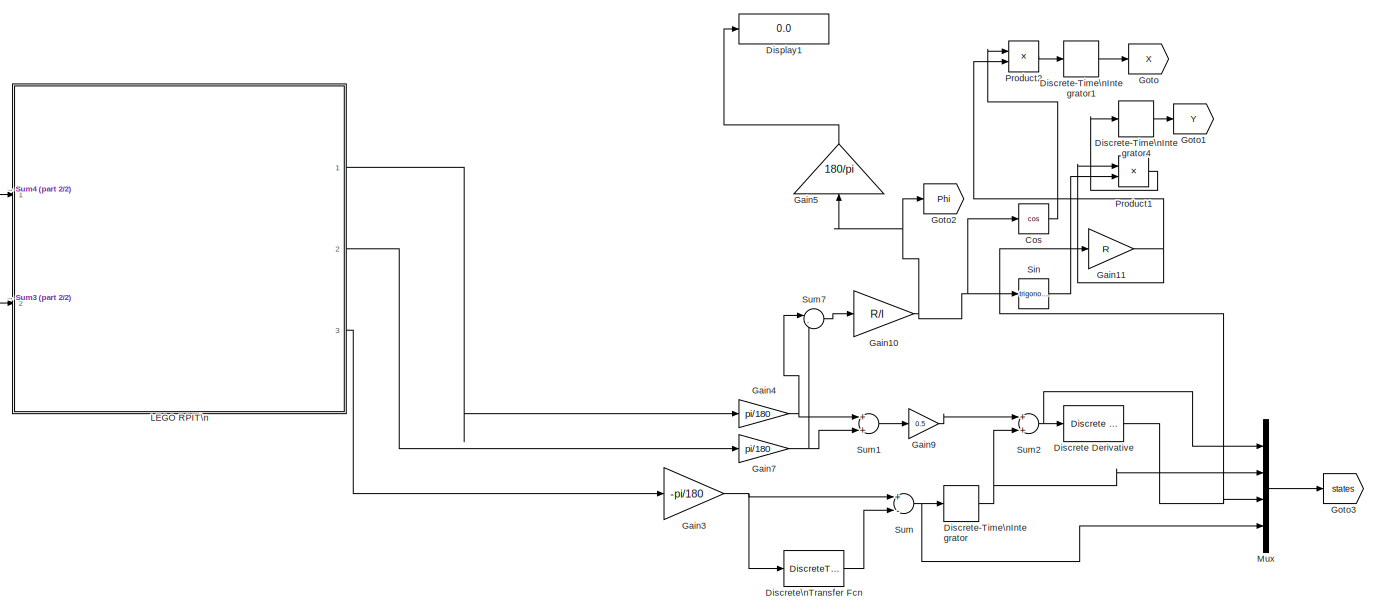
[diagram: root canvas - part 1/2, right side, full height]
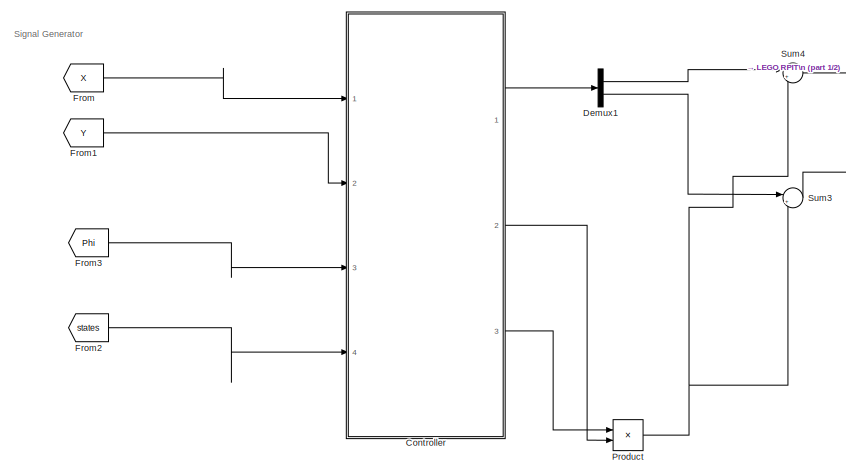
[diagram: root canvas - part 2/2, left side, full height]
MODEL EV3_test
KIND model
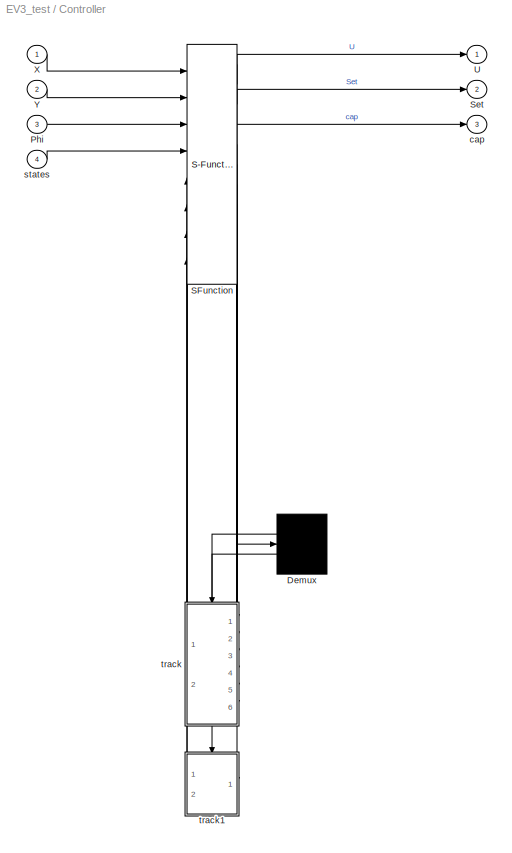
BLOCK [SubSystem] Controller
  ErrorFcn = Stateflow.Translate.translate
  PermitHierarchicalResolution = ExplicitOnly
  Ports = [4, 3]
  RequestExecContextInheritance = off
  SFBlockType = Chart
  SID = 88
  TreatAsAtomicUnit = on
  Variant = off
BLOCK [Demux] Controller/ Demux 
  Outputs = 2
  Ports = [1, 2]
  SID = 88::189
BLOCK [S-Function] Controller/ SFunction 
  EnableBusSupport = on
  FunctionName = sf_sfun
  Parameters = waypoints
  PortCounts = [8 11]
  Ports = [8, 11]
  SFcnIsStateOwnerBlock = off
  SFunctionDeploymentMode = off
  SID = 88::188
  Tag = Stateflow S-Function EV3_test 3
BLOCK [Inport] Controller/Phi
  IconDisplay = Port number
  Port = 3
  SID = 88::183
BLOCK [Outport] Controller/Set
  IconDisplay = Port number
  Port = 2
  SID = 88::191
BLOCK [Outport] Controller/U
  IconDisplay = Port number
  SID = 88::163
BLOCK [Inport] Controller/X
  IconDisplay = Port number
  SID = 88::159
BLOCK [Inport] Controller/Y
  IconDisplay = Port number
  Port = 2
  SID = 88::160
BLOCK [Outport] Controller/cap
  IconDisplay = Port number
  Port = 3
  SID = 88::293
BLOCK [Inport] Controller/states
  IconDisplay = Port number
  Port = 4
  SID = 88::161
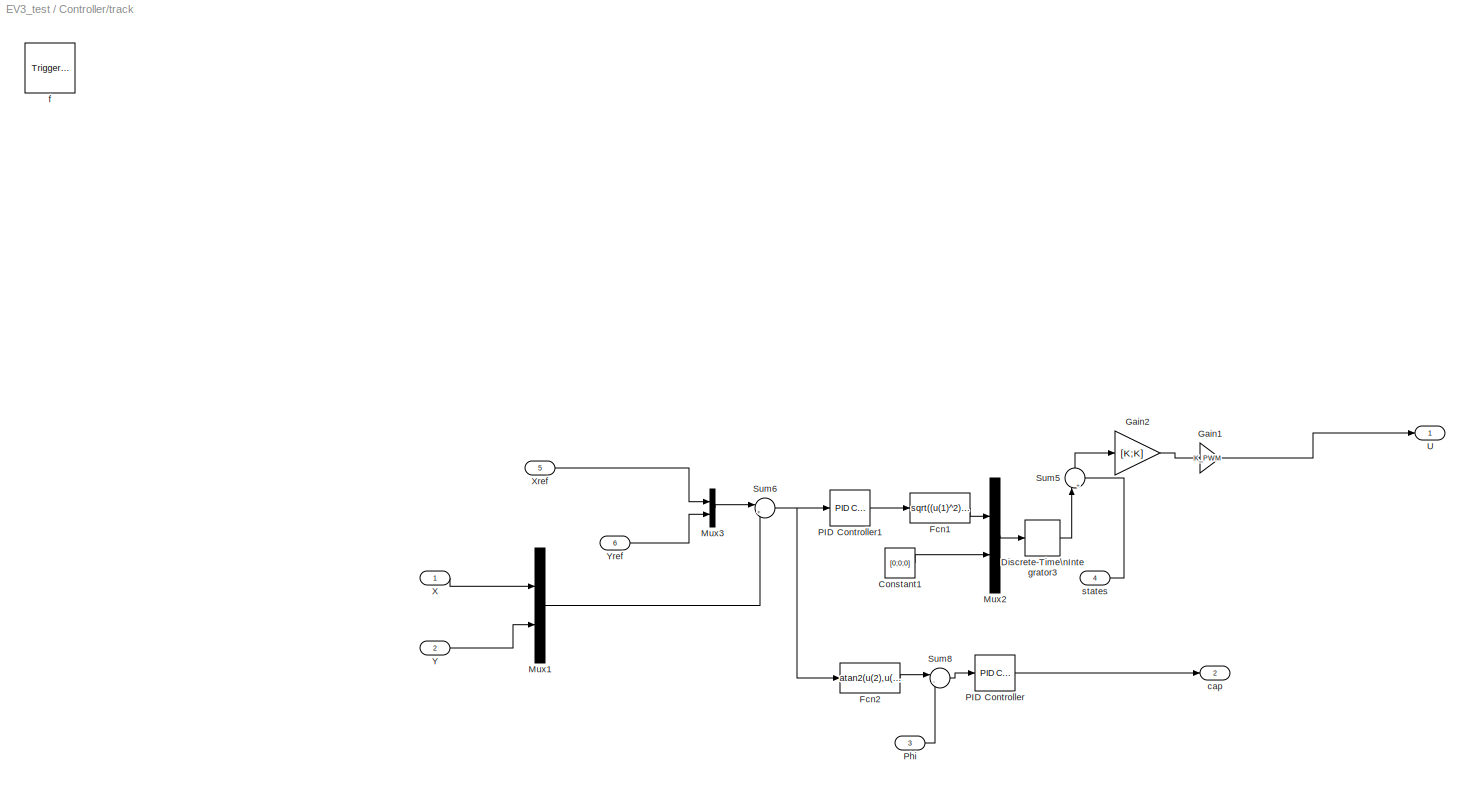
BLOCK [SubSystem] Controller/track
  Ports = [6, 2, 0, 1]
  PreDeleteFcn = Stateflow.SLINSF.SimulinkMan.removePreDeleteFcn
  RequestExecContextInheritance = off
  SID = 88::85
  UndoDeleteFcn = Stateflow.SLINSF.SimulinkMan.restorePreDeleteFcn
  Variant = off
BLOCK [Constant] Controller/track/Constant1
  SID = 88::91
  Value = [0;0;0]
BLOCK [DiscreteIntegrator] Controller/track/Discrete-Time\nIntegrator3
  ICPrevOutput = DiscIntNeverNeededParam
  ICPrevScaledInput = DiscIntNeverNeededParam
  Ports = [1, 1]
  SID = 88::92
  SampleTime = -1
BLOCK [Fcn] Controller/track/Fcn1
  Expr = sqrt((u(1)^2)+(u(2)^2))
  SID = 88::93
BLOCK [Fcn] Controller/track/Fcn2
  Expr = atan2(u(2),u(1))
  SID = 88::94
BLOCK [Gain] Controller/track/Gain1
  Gain = K_PWM
  OutDataTypeStr = Inherit: Inherit via internal rule
  ParamDataTypeStr = Inherit: Inherit via internal rule
  SID = 88::97
  SaturateOnIntegerOverflow = off
BLOCK [Gain] Controller/track/Gain2
  Gain = [K;K]
  Multiplication = Matrix(K*u)
  OutDataTypeStr = Inherit: Inherit via internal rule
  ParamDataTypeStr = Inherit: Inherit via internal rule
  SID = 88::98
  SaturateOnIntegerOverflow = off
BLOCK [Mux] Controller/track/Mux1
  DisplayOption = bar
  Inputs = 2
  Ports = [2, 1]
  SID = 88::99
BLOCK [Mux] Controller/track/Mux2
  DisplayOption = bar
  Inputs = 2
  Ports = [2, 1]
  SID = 88::100
BLOCK [Mux] Controller/track/Mux3
  DisplayOption = bar
  Inputs = 2
  Ports = [2, 1]
  SID = 88::101
BLOCK [Reference] Controller/track/PID Controller  REF=simulink/Continuous/PID Controller
  AntiWindupMode = none
  Controller = PID
  ControllerParametersSource = internal
  D = 0.8
  DGainOutDataTypeStr = Inherit: Inherit via internal rule
  DOutDataTypeStr = Inherit: Inherit via internal rule
  DOutMax = []
  DOutMin = []
  DParamDataTypeStr = Inherit: Inherit via internal rule
  DParamMax = []
  DParamMin = []
  DProdOutDataTypeStr = Inherit: Inherit via internal rule
  DifferentiatorICPrevScaledInput = 0
  DifferentiatorOutDataTypeStr = Inherit: Inherit via internal rule
  DifferentiatorOutMax = []
  DifferentiatorOutMin = []
  DivideOutDataTypeStr = Inherit: Inherit via internal rule
  DivideOutMax = []
  DivideOutMin = []
  ExternalReset = none
  FilterContinuousStateAttributes = ''
  FilterDiffDenAccumDataTypeStr = Inherit: Inherit via internal rule
  FilterDiffDenProductOutputDataTypeStr = Inherit: Inherit via internal rule
  FilterDiffNumAccumDataTypeStr = Inherit: Inherit via internal rule
  FilterDiffNumProductOutputDataTypeStr = Inherit: Inherit via internal rule
  FilterDiffOutCoefDataTypeStr = Inherit: Inherit via internal rule
  FilterDiffOutCoefMax = []
  FilterDiffOutCoefMin = []
  FilterMethod = Forward Euler
  FilterOutDataTypeStr = Inherit: Inherit via internal rule
  FilterOutMax = []
  FilterOutMin = []
  FilterRTWStateStorageClass = Auto
  FilterStateMustResolveToSignalObject = off
  Form = Parallel
  I = 0
  IGainOutDataTypeStr = Inherit: Inherit via internal rule
  IOutDataTypeStr = Inherit: Inherit via internal rule
  IOutMax = []
  IOutMin = []
  IParamDataTypeStr = Inherit: Inherit via internal rule
  IParamMax = []
  IParamMin = []
  IProdOutDataTypeStr = Inherit: Inherit via internal rule
  IgnoreLimit = off
  InitialConditionForFilter = 0
  InitialConditionForIntegrator = 0
  InitialConditionSetting = State (most efficient)
  InitialConditionSource = internal
  IntegratorContinuousStateAttributes = ''
  IntegratorMethod = Forward Euler
  IntegratorOutDataTypeStr = Inherit: Inherit via internal rule
  IntegratorOutMax = []
  IntegratorOutMin = []
  IntegratorRTWStateStorageClass = Auto
  IntegratorStateMustResolveToSignalObject = off
  Kb = 1
  KbOutDataTypeStr = Inherit: Inherit via internal rule
  KbOutMax = []
  KbOutMin = []
  KbParamDataTypeStr = Inherit: Inherit via internal rule
  KbParamMax = []
  KbParamMin = []
  Kt = 1
  KtOutDataTypeStr = Inherit: Inherit via internal rule
  KtOutMax = []
  KtOutMin = []
  KtParamDataTypeStr = Inherit: Inherit via internal rule
  KtParamMax = []
  KtParamMin = []
  LimitOutput = off
  LinearizeAsGain = on
  LockScale = off
  LowerSaturationLimit = -inf
  N = 100
  NGainOutDataTypeStr = Inherit: Inherit via internal rule
  NOutDataTypeStr = Inherit: Inherit via internal rule
  NOutMax = []
  NOutMin = []
  NParamDataTypeStr = Inherit: Inherit via internal rule
  NParamMax = []
  NParamMin = []
  NProdOutDataTypeStr = Inherit: Inherit via internal rule
  P = 4
  PGainOutDataTypeStr = Inherit: Inherit via internal rule
  POutDataTypeStr = Inherit: Inherit via internal rule
  POutMax = []
  POutMin = []
  PParamDataTypeStr = Inherit: Inherit via internal rule
  PParamMax = []
  PParamMin = []
  PProdOutDataTypeStr = Inherit: Inherit via internal rule
  Ports = [1, 1]
  ReciprocalOutDataTypeStr = Inherit: Inherit via internal rule
  ReciprocalOutMax = []
  ReciprocalOutMin = []
  RndMeth = Floor
  SID = 88::102
  SampleTime = -1
  SaturateOnIntegerOverflow = off
  SaturationOutDataTypeStr = Inherit: Same as input
  SaturationOutMax = []
  SaturationOutMin = []
  SourceBlock = simulink/Continuous/PID Controller
  SourceProductBaseCode = SL
  SourceProductName = Simulink
  SourceType = PID 1dof
  SumAccumDataTypeStr = Inherit: Inherit via internal rule
  SumDAccumDataTypeStr = Inherit: Inherit via internal rule
  SumDOutDataTypeStr = Inherit: Inherit via internal rule
  SumDOutMax = []
  SumDOutMin = []
  SumDenAccumDataTypeStr = Inherit: Inherit via internal rule
  SumDenOutDataTypeStr = Inherit: Inherit via internal rule
  SumDenOutMax = []
  SumDenOutMin = []
  SumI1AccumDataTypeStr = Inherit: Inherit via internal rule
  SumI1OutDataTypeStr = Inherit: Inherit via internal rule
  SumI1OutMax = []
  SumI1OutMin = []
  SumI2AccumDataTypeStr = Inherit: Inherit via internal rule
  SumI2OutDataTypeStr = Inherit: Inherit via internal rule
  SumI2OutMax = []
  SumI2OutMin = []
  SumI3AccumDataTypeStr = Inherit: Inherit via internal rule
  SumI3OutDataTypeStr = Inherit: Inherit via internal rule
  SumI3OutMax = []
  SumI3OutMin = []
  SumNumAccumDataTypeStr = Inherit: Inherit via internal rule
  SumNumOutDataTypeStr = Inherit: Inherit via internal rule
  SumNumOutMax = []
  SumNumOutMin = []
  SumOutDataTypeStr = Inherit: Inherit via internal rule
  SumOutMax = []
  SumOutMin = []
  TimeDomain = Discrete-time
  TrackingMode = off
  TunerSelectOption = Transfer Function Based (PID Tuner App)
  UpperSaturationLimit = inf
  UseFilter = on
  ZeroCross = on
BLOCK [Reference] Controller/track/PID Controller1  REF=simulink/Continuous/PID Controller
  AntiWindupMode = none
  Controller = PID
  ControllerParametersSource = internal
  D = 0.105
  DGainOutDataTypeStr = Inherit: Inherit via internal rule
  DOutDataTypeStr = Inherit: Inherit via internal rule
  DOutMax = []
  DOutMin = []
  DParamDataTypeStr = Inherit: Inherit via internal rule
  DParamMax = []
  DParamMin = []
  DProdOutDataTypeStr = Inherit: Inherit via internal rule
  DifferentiatorICPrevScaledInput = 0
  DifferentiatorOutDataTypeStr = Inherit: Inherit via internal rule
  DifferentiatorOutMax = []
  DifferentiatorOutMin = []
  DivideOutDataTypeStr = Inherit: Inherit via internal rule
  DivideOutMax = []
  DivideOutMin = []
  ExternalReset = none
  FilterContinuousStateAttributes = ''
  FilterDiffDenAccumDataTypeStr = Inherit: Inherit via internal rule
  FilterDiffDenProductOutputDataTypeStr = Inherit: Inherit via internal rule
  FilterDiffNumAccumDataTypeStr = Inherit: Inherit via internal rule
  FilterDiffNumProductOutputDataTypeStr = Inherit: Inherit via internal rule
  FilterDiffOutCoefDataTypeStr = Inherit: Inherit via internal rule
  FilterDiffOutCoefMax = []
  FilterDiffOutCoefMin = []
  FilterMethod = Forward Euler
  FilterOutDataTypeStr = Inherit: Inherit via internal rule
  FilterOutMax = []
  FilterOutMin = []
  FilterRTWStateStorageClass = Auto
  FilterStateMustResolveToSignalObject = off
  Form = Parallel
  I = 0.025
  IGainOutDataTypeStr = Inherit: Inherit via internal rule
  IOutDataTypeStr = Inherit: Inherit via internal rule
  IOutMax = []
  IOutMin = []
  IParamDataTypeStr = Inherit: Inherit via internal rule
  IParamMax = []
  IParamMin = []
  IProdOutDataTypeStr = Inherit: Inherit via internal rule
  IgnoreLimit = off
  InitialConditionForFilter = 0
  InitialConditionForIntegrator = 0
  InitialConditionSetting = State (most efficient)
  InitialConditionSource = internal
  IntegratorContinuousStateAttributes = ''
  IntegratorMethod = Forward Euler
  IntegratorOutDataTypeStr = Inherit: Inherit via internal rule
  IntegratorOutMax = []
  IntegratorOutMin = []
  IntegratorRTWStateStorageClass = Auto
  IntegratorStateMustResolveToSignalObject = off
  Kb = 1
  KbOutDataTypeStr = Inherit: Inherit via internal rule
  KbOutMax = []
  KbOutMin = []
  KbParamDataTypeStr = Inherit: Inherit via internal rule
  KbParamMax = []
  KbParamMin = []
  Kt = 1
  KtOutDataTypeStr = Inherit: Inherit via internal rule
  KtOutMax = []
  KtOutMin = []
  KtParamDataTypeStr = Inherit: Inherit via internal rule
  KtParamMax = []
  KtParamMin = []
  LimitOutput = off
  LinearizeAsGain = on
  LockScale = off
  LowerSaturationLimit = -inf
  N = 100
  NGainOutDataTypeStr = Inherit: Inherit via internal rule
  NOutDataTypeStr = Inherit: Inherit via internal rule
  NOutMax = []
  NOutMin = []
  NParamDataTypeStr = Inherit: Inherit via internal rule
  NParamMax = []
  NParamMin = []
  NProdOutDataTypeStr = Inherit: Inherit via internal rule
  P = 1
  PGainOutDataTypeStr = Inherit: Inherit via internal rule
  POutDataTypeStr = Inherit: Inherit via internal rule
  POutMax = []
  POutMin = []
  PParamDataTypeStr = Inherit: Inherit via internal rule
  PParamMax = []
  PParamMin = []
  PProdOutDataTypeStr = Inherit: Inherit via internal rule
  Ports = [1, 1]
  ReciprocalOutDataTypeStr = Inherit: Inherit via internal rule
  ReciprocalOutMax = []
  ReciprocalOutMin = []
  RndMeth = Floor
  SID = 88::103
  SampleTime = -1
  SaturateOnIntegerOverflow = off
  SaturationOutDataTypeStr = Inherit: Same as input
  SaturationOutMax = []
  SaturationOutMin = []
  SourceBlock = simulink/Continuous/PID Controller
  SourceProductBaseCode = SL
  SourceProductName = Simulink
  SourceType = PID 1dof
  SumAccumDataTypeStr = Inherit: Inherit via internal rule
  SumDAccumDataTypeStr = Inherit: Inherit via internal rule
  SumDOutDataTypeStr = Inherit: Inherit via internal rule
  SumDOutMax = []
  SumDOutMin = []
  SumDenAccumDataTypeStr = Inherit: Inherit via internal rule
  SumDenOutDataTypeStr = Inherit: Inherit via internal rule
  SumDenOutMax = []
  SumDenOutMin = []
  SumI1AccumDataTypeStr = Inherit: Inherit via internal rule
  SumI1OutDataTypeStr = Inherit: Inherit via internal rule
  SumI1OutMax = []
  SumI1OutMin = []
  SumI2AccumDataTypeStr = Inherit: Inherit via internal rule
  SumI2OutDataTypeStr = Inherit: Inherit via internal rule
  SumI2OutMax = []
  SumI2OutMin = []
  SumI3AccumDataTypeStr = Inherit: Inherit via internal rule
  SumI3OutDataTypeStr = Inherit: Inherit via internal rule
  SumI3OutMax = []
  SumI3OutMin = []
  SumNumAccumDataTypeStr = Inherit: Inherit via internal rule
  SumNumOutDataTypeStr = Inherit: Inherit via internal rule
  SumNumOutMax = []
  SumNumOutMin = []
  SumOutDataTypeStr = Inherit: Inherit via internal rule
  SumOutMax = []
  SumOutMin = []
  TimeDomain = Discrete-time
  TrackingMode = off
  TunerSelectOption = Transfer Function Based (PID Tuner App)
  UpperSaturationLimit = inf
  UseFilter = on
  ZeroCross = on
BLOCK [Inport] Controller/track/Phi
  IconDisplay = Port number
  OutDataTypeStr = double
  Port = 3
  PortDimensions = 1
  SID = 88::184
  SignalType = real
  VarSizeSig = No
BLOCK [Sum] Controller/track/Sum5
  IconShape = round
  InputSameDT = off
  Inputs = |+-
  OutDataTypeStr = Inherit: Inherit via internal rule
  Ports = [2, 1]
  SID = 88::154
  SaturateOnIntegerOverflow = off
BLOCK [Sum] Controller/track/Sum6
  IconShape = round
  InputSameDT = off
  Inputs = |+-
  OutDataTypeStr = Inherit: Inherit via internal rule
  Ports = [2, 1]
  SID = 88::155
  SaturateOnIntegerOverflow = off
BLOCK [Sum] Controller/track/Sum8
  IconShape = round
  InputSameDT = off
  Inputs = |-+
  OutDataTypeStr = Inherit: Inherit via internal rule
  Ports = [2, 1]
  SID = 88::156
  SaturateOnIntegerOverflow = off
BLOCK [Outport] Controller/track/U
  IconDisplay = Port number
  InitialOutput = [0;0]
  SID = 88::90
BLOCK [Inport] Controller/track/X
  IconDisplay = Port number
  OutDataTypeStr = double
  PortDimensions = 1
  SID = 88::87
  SignalType = real
  VarSizeSig = No
BLOCK [Inport] Controller/track/Xref
  IconDisplay = Port number
  OutDataTypeStr = double
  Port = 5
  PortDimensions = 1
  SID = 88::181
  SignalType = real
  VarSizeSig = No
BLOCK [Inport] Controller/track/Y
  IconDisplay = Port number
  OutDataTypeStr = double
  Port = 2
  PortDimensions = 1
  SID = 88::88
  SignalType = real
  VarSizeSig = No
BLOCK [Inport] Controller/track/Yref
  IconDisplay = Port number
  OutDataTypeStr = double
  Port = 6
  PortDimensions = 1
  SID = 88::182
  SignalType = real
  VarSizeSig = No
BLOCK [Outport] Controller/track/cap
  IconDisplay = Port number
  InitialOutput = [0]
  Port = 2
  SID = 88::291
BLOCK [TriggerPort] Controller/track/f
  CopyFcn = Stateflow.SLINSF.SimulinkMan.removeBlockPreDeleteFcn
  Ports = []
  PreDeleteFcn = Stateflow.SLINSF.SimulinkMan.unsafePredeleteFcn
  SID = 88::86
  StatesWhenEnabling = held
  TriggerType = function-call
  VariantControl = (inherit)
BLOCK [Inport] Controller/track/states
  IconDisplay = Port number
  OutDataTypeStr = double
  OutMax = [4]
  OutMin = [4]
  Port = 4
  PortDimensions = 4
  SID = 88::162
  SignalType = real
  VarSizeSig = No
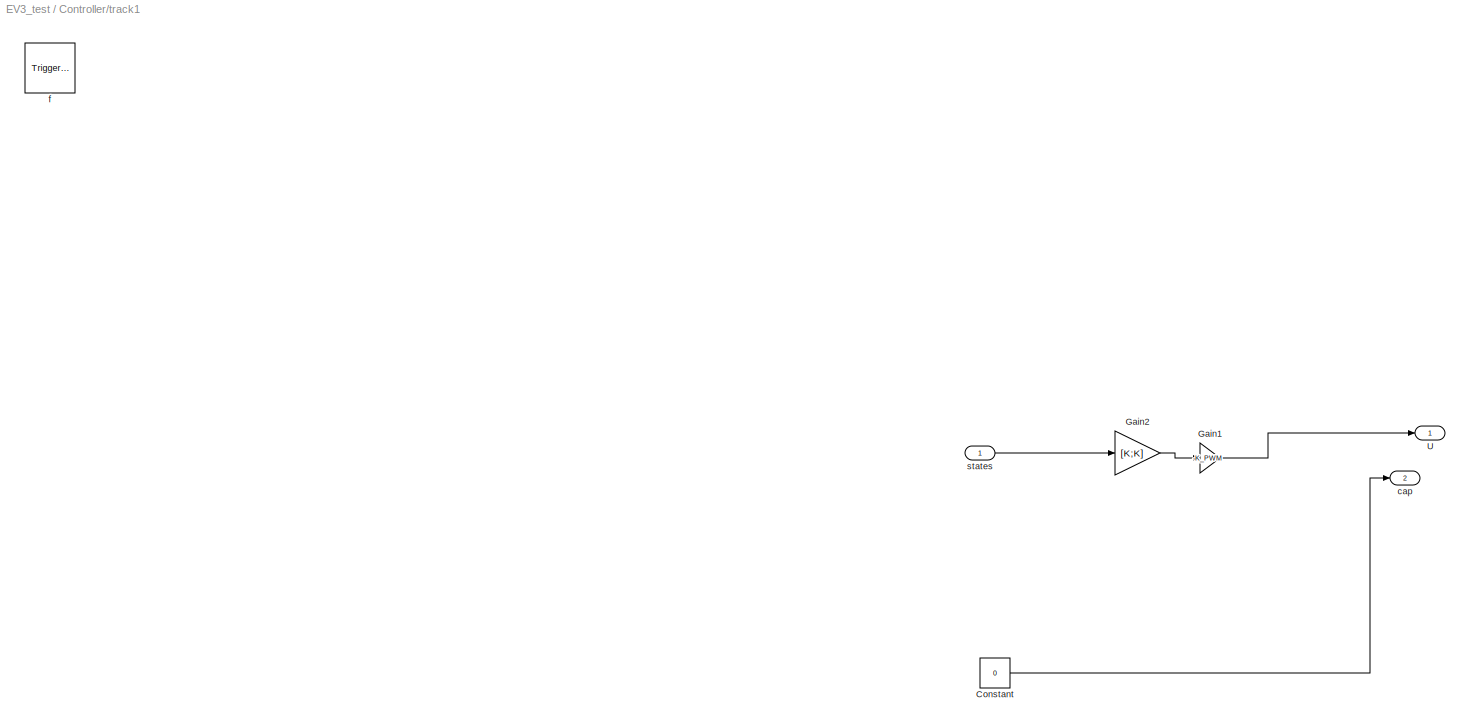
BLOCK [SubSystem] Controller/track1
  Ports = [1, 2, 0, 1]
  PreDeleteFcn = Stateflow.SLINSF.SimulinkMan.removePreDeleteFcn
  RequestExecContextInheritance = off
  SID = 88::266
  UndoDeleteFcn = Stateflow.SLINSF.SimulinkMan.restorePreDeleteFcn
  Variant = off
BLOCK [Constant] Controller/track1/Constant
  SID = 88::290
  Value = 0
BLOCK [Gain] Controller/track1/Gain1
  Gain = -K_PWM
  OutDataTypeStr = Inherit: Inherit via internal rule
  ParamDataTypeStr = Inherit: Inherit via internal rule
  SID = 88::278
  SaturateOnIntegerOverflow = off
BLOCK [Gain] Controller/track1/Gain2
  Gain = [K;K]
  Multiplication = Matrix(K*u)
  OutDataTypeStr = Inherit: Inherit via internal rule
  ParamDataTypeStr = Inherit: Inherit via internal rule
  SID = 88::279
  SaturateOnIntegerOverflow = off
BLOCK [Outport] Controller/track1/U
  IconDisplay = Port number
  InitialOutput = [0;0]
  SID = 88::289
BLOCK [Outport] Controller/track1/cap
  IconDisplay = Port number
  InitialOutput = [0]
  Port = 2
  SID = 88::292
BLOCK [TriggerPort] Controller/track1/f
  CopyFcn = Stateflow.SLINSF.SimulinkMan.removeBlockPreDeleteFcn
  Ports = []
  PreDeleteFcn = Stateflow.SLINSF.SimulinkMan.unsafePredeleteFcn
  SID = 88::273
  StatesWhenEnabling = held
  TriggerType = function-call
  VariantControl = (inherit)
BLOCK [Inport] Controller/track1/states
  IconDisplay = Port number
  OutDataTypeStr = double
  OutMax = [4]
  OutMin = [4]
  PortDimensions = 4
  SID = 88::270
  SignalType = real
  VarSizeSig = No
BLOCK [Trigonometry] Cos
  Operator = cos
  Ports = [1, 1]
  SID = 95
BLOCK [Demux] Demux1
  DisplayOption = bar
  Outputs = 2
  Ports = [1, 2]
  SID = 85
BLOCK [Reference] Discrete Derivative  REF=simulink/Discrete/Discrete Derivative
  DoSatur = off
  ICPrevScaledInput = 0.0
  InputProcessing = Elements as channels (sample based)
  LockScale = off
  OutDataType = fixdt(1, 16)
  OutDataTypeStr = Inherit: Inherit via internal rule
  OutMax = []
  OutMin = []
  OutScaling = 2^-10
  OutputDataTypeScalingMode = Inherit via internal rule
  Ports = [1, 1]
  RndMeth = Floor
  SID = 97
  SourceBlock = simulink/Discrete/Discrete Derivative
  SourceProductBaseCode = SL
  SourceProductName = Simulink
  SourceType = Discrete Derivative
  gainval = 1.0
BLOCK [DiscreteIntegrator] Discrete-Time\nIntegrator
  ICPrevOutput = DiscIntNeverNeededParam
  ICPrevScaledInput = DiscIntNeverNeededParam
  InitialConditionSetting = State (most efficient)
  Ports = [1, 1]
  SID = 98
  SampleTime = Ts
BLOCK [DiscreteIntegrator] Discrete-Time\nIntegrator1
  ICPrevOutput = DiscIntNeverNeededParam
  ICPrevScaledInput = DiscIntNeverNeededParam
  InitialConditionSetting = State (most efficient)
  Ports = [1, 1]
  SID = 99
  SampleTime = Ts
BLOCK [DiscreteIntegrator] Discrete-Time\nIntegrator4
  ICPrevOutput = DiscIntNeverNeededParam
  ICPrevScaledInput = DiscIntNeverNeededParam
  InitialConditionSetting = State (most efficient)
  Ports = [1, 1]
  SID = 100
  SampleTime = Ts
BLOCK [DiscreteTransferFcn] Discrete\nTransfer Fcn
  Denominator = [1 -0.999]
  InputPortMap = u0
  Numerator = [0.001 0]
  Ports = [1, 1]
  SID = 96
  SampleTime = Ts
BLOCK [Display] Display1
  Decimation = 1
  Ports = [1]
  SID = 121
BLOCK [From] From
  GotoTag = X
  IconDisplay = Tag and signal name
  SID = 89
  TagVisibility = global
BLOCK [From] From1
  GotoTag = Y
  SID = 90
  TagVisibility = global
BLOCK [From] From2
  GotoTag = states
  IconDisplay = Tag and signal name
  SID = 91
  TagVisibility = global
BLOCK [From] From3
  GotoTag = Phi
  SID = 92
  TagVisibility = global
BLOCK [Gain] Gain10
  Gain = R/l
  OutDataTypeStr = Inherit: Inherit via internal rule
  ParamDataTypeStr = Inherit: Inherit via internal rule
  SID = 102
  SaturateOnIntegerOverflow = off
BLOCK [Gain] Gain11
  Gain = R
  OutDataTypeStr = Inherit: Inherit via internal rule
  ParamDataTypeStr = Inherit: Inherit via internal rule
  SID = 103
  SaturateOnIntegerOverflow = off
BLOCK [Gain] Gain3
  Gain = -pi/180
  OutDataTypeStr = Inherit: Inherit via internal rule
  ParamDataTypeStr = Inherit: Inherit via internal rule
  SID = 104
  SaturateOnIntegerOverflow = off
BLOCK [Gain] Gain4
  Gain = pi/180
  OutDataTypeStr = Inherit: Inherit via internal rule
  ParamDataTypeStr = Inherit: Inherit via internal rule
  SID = 105
  SaturateOnIntegerOverflow = off
BLOCK [Gain] Gain5
  Gain = 180/pi
  OutDataTypeStr = Inherit: Inherit via internal rule
  ParamDataTypeStr = Inherit: Inherit via internal rule
  SID = 106
  SaturateOnIntegerOverflow = off
BLOCK [Gain] Gain7
  Gain = pi/180
  OutDataTypeStr = Inherit: Inherit via internal rule
  ParamDataTypeStr = Inherit: Inherit via internal rule
  SID = 107
  SaturateOnIntegerOverflow = off
BLOCK [Gain] Gain9
  Gain = 0.5
  OutDataTypeStr = Inherit: Inherit via internal rule
  ParamDataTypeStr = Inherit: Inherit via internal rule
  SID = 108
  SaturateOnIntegerOverflow = off
BLOCK [Goto] Goto
  GotoTag = X
  SID = 109
  TagVisibility = global
BLOCK [Goto] Goto1
  GotoTag = Y
  SID = 110
  TagVisibility = global
BLOCK [Goto] Goto2
  GotoTag = Phi
  SID = 111
  TagVisibility = global
BLOCK [Goto] Goto3
  GotoTag = states
  IconDisplay = Tag and signal name
  SID = 112
  TagVisibility = global
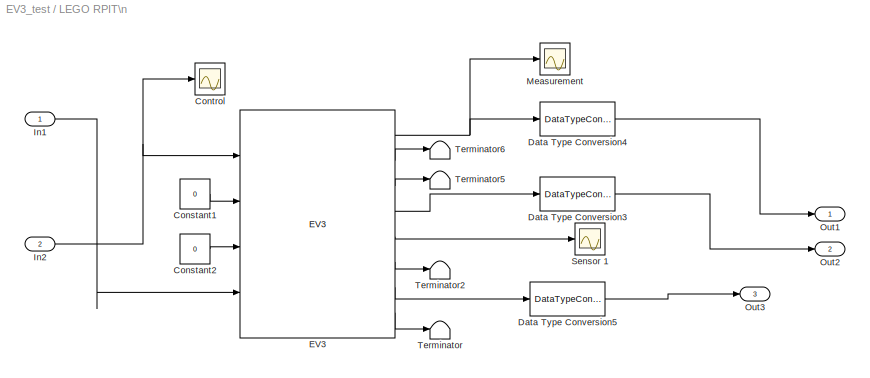
BLOCK [SubSystem] LEGO RPIT\n
  Ports = [2, 3]
  RequestExecContextInheritance = off
  SID = 122
  Variant = off
BLOCK [Constant] LEGO RPIT\n/Constant1
  SID = 3
  Value = 0
BLOCK [Constant] LEGO RPIT\n/Constant2
  SID = 4
  Value = 0
BLOCK [Scope] LEGO RPIT\n/Control
  NumInputPorts = 1
  Ports = [1]
  SID = 25
  ScopeSpecificationString = Simulink.scopes.TimeScopeBlockCfg('CurrentConfiguration', extmgr.ConfigurationSet(extmgr.Configuration('Core','General UI',true),extmgr.Configuration('Core','Source UI',true),extmgr.Configuration('Sources','WiredSimulink',true,'DataLoggingVariableName','ScopeData1','DataLoggingSaveFormat','StructureWithTime','DataLoggingLimitDataPoints',true,'DataLoggingDecimation','1','DataLoggingDecimateData',tr...<+1654ch>
BLOCK [DataTypeConversion] LEGO RPIT\n/Data Type Conversion3
  OutDataTypeStr = double
  RndMeth = Floor
  SID = 68
  SaturateOnIntegerOverflow = off
BLOCK [DataTypeConversion] LEGO RPIT\n/Data Type Conversion4
  OutDataTypeStr = double
  RndMeth = Floor
  SID = 69
  SaturateOnIntegerOverflow = off
BLOCK [DataTypeConversion] LEGO RPIT\n/Data Type Conversion5
  OutDataTypeStr = double
  RndMeth = Floor
  SID = 70
  SaturateOnIntegerOverflow = off
BLOCK [Reference] LEGO RPIT\n/EV3  REF=rpi_blkst/EV3  (lib defined in mdl_5f9edbe601a8, slx_830431f926a7)
  Ports = [4, 8]
  SID = 1
  SourceBlock = rpi_blkst/EV3
  SourceProductName = RPI Blockset
  SourceType = LEGO EV3
  rpi_mask_Ts = 0.0033
BLOCK [Inport] LEGO RPIT\n/In1
  IconDisplay = Port number
  SID = 123
BLOCK [Inport] LEGO RPIT\n/In2
  IconDisplay = Port number
  Port = 2
  SID = 124
BLOCK [Scope] LEGO RPIT\n/Measurement
  NumInputPorts = 1
  Ports = [1]
  SID = 10
  ScopeSpecificationString = Simulink.scopes.TimeScopeBlockCfg('CurrentConfiguration', extmgr.ConfigurationSet(extmgr.Configuration('Core','General UI',true),extmgr.Configuration('Core','Source UI',true),extmgr.Configuration('Sources','WiredSimulink',true,'DataLoggingSaveFormat','StructureWithTime','DataLoggingLimitDataPoints',true,'DataLoggingDecimation','1','DataLoggingDecimateData',true),extmgr.Configuration('Visuals','Tim...<+1615ch>
BLOCK [Outport] LEGO RPIT\n/Out1
  IconDisplay = Port number
  SID = 125
BLOCK [Outport] LEGO RPIT\n/Out2
  IconDisplay = Port number
  Port = 2
  SID = 126
BLOCK [Outport] LEGO RPIT\n/Out3
  IconDisplay = Port number
  Port = 3
  SID = 127
BLOCK [Scope] LEGO RPIT\n/Sensor 1
  NumInputPorts = 1
  Ports = [1]
  SID = 30
  ScopeSpecificationString = Simulink.scopes.TimeScopeBlockCfg('CurrentConfiguration', extmgr.ConfigurationSet(extmgr.Configuration('Core','General UI',true),extmgr.Configuration('Core','Source UI',true),extmgr.Configuration('Sources','WiredSimulink',true,'DataLoggingVariableName','ScopeData2','DataLoggingSaveFormat','StructureWithTime','DataLoggingLimitDataPoints',true,'DataLoggingDecimation','1','DataLoggingDecimateData',tr...<+1651ch>
BLOCK [Terminator] LEGO RPIT\n/Terminator
  SID = 6
BLOCK [Terminator] LEGO RPIT\n/Terminator2
  SID = 8
BLOCK [Terminator] LEGO RPIT\n/Terminator5
  SID = 12
BLOCK [Terminator] LEGO RPIT\n/Terminator6
  SID = 13
BLOCK [Mux] Mux
  DisplayOption = bar
  Ports = [4, 1]
  SID = 113
BLOCK [Product] Product
  InputSameDT = off
  OutDataTypeStr = Inherit: Inherit via internal rule
  Ports = [2, 1]
  RndMeth = Floor
  SID = 93
  SaturateOnIntegerOverflow = off
BLOCK [Product] Product1
  InputSameDT = off
  OutDataTypeStr = Inherit: Inherit via internal rule
  Ports = [2, 1]
  RndMeth = Floor
  SID = 114
  SaturateOnIntegerOverflow = off
BLOCK [Product] Product2
  InputSameDT = off
  OutDataTypeStr = Inherit: Inherit via internal rule
  Ports = [2, 1]
  RndMeth = Floor
  SID = 115
  SaturateOnIntegerOverflow = off
BLOCK [Trigonometry] Sin
  Ports = [1, 1]
  SID = 116
BLOCK [Sum] Sum
  InputSameDT = off
  Inputs = +-
  OutDataTypeStr = Inherit: Inherit via internal rule
  Ports = [2, 1]
  SID = 117
  SaturateOnIntegerOverflow = off
BLOCK [Sum] Sum1
  InputSameDT = off
  OutDataTypeStr = Inherit: Inherit via internal rule
  Ports = [2, 1]
  SID = 118
  SaturateOnIntegerOverflow = off
BLOCK [Sum] Sum2
  InputSameDT = off
  OutDataTypeStr = Inherit: Inherit via internal rule
  Ports = [2, 1]
  SID = 119
  SaturateOnIntegerOverflow = off
BLOCK [Sum] Sum3
  IconShape = round
  InputSameDT = off
  Inputs = |+-
  OutDataTypeStr = Inherit: Inherit via internal rule
  Ports = [2, 1]
  SID = 86
  SaturateOnIntegerOverflow = off
BLOCK [Sum] Sum4
  IconShape = round
  InputSameDT = off
  Inputs = |++
  OutDataTypeStr = Inherit: Inherit via internal rule
  Ports = [2, 1]
  SID = 87
  SaturateOnIntegerOverflow = off
BLOCK [Sum] Sum7
  IconShape = round
  InputSameDT = off
  Inputs = |-+
  OutDataTypeStr = Inherit: Inherit via internal rule
  Ports = [2, 1]
  SID = 120
  SaturateOnIntegerOverflow = off
ANNOTATION (root): Signal Generator\n
LINE Controller/ Demux :1 -> Controller/track:trigger
LINE Controller/ Demux :2 -> Controller/track1:trigger
LINE Controller/ SFunction :1 -> Controller/ Demux :1
LINE Controller/ SFunction :10 -> Controller/track:6
LINE Controller/ SFunction :11 -> Controller/track1:1
LINE Controller/ SFunction :2 -> Controller/U:1
LINE Controller/ SFunction :3 -> Controller/Set:1
LINE Controller/ SFunction :4 -> Controller/cap:1
LINE Controller/ SFunction :5 -> Controller/track:1
LINE Controller/ SFunction :6 -> Controller/track:2
LINE Controller/ SFunction :7 -> Controller/track:3
LINE Controller/ SFunction :8 -> Controller/track:4
LINE Controller/ SFunction :9 -> Controller/track:5
LINE Controller/Phi:1 -> Controller/ SFunction :3
LINE Controller/X:1 -> Controller/ SFunction :1
LINE Controller/Y:1 -> Controller/ SFunction :2
LINE Controller/states:1 -> Controller/ SFunction :4
LINE Controller/track/Constant1:1 -> Controller/track/Mux2:2
LINE Controller/track/Discrete-Time\nIntegrator3:1 -> Controller/track/Sum5:1
LINE Controller/track/Fcn1:1 -> Controller/track/Mux2:1
LINE Controller/track/Fcn2:1 -> Controller/track/Sum8:1
LINE Controller/track/Gain1:1 -> Controller/track/U:1
LINE Controller/track/Gain2:1 -> Controller/track/Gain1:1
LINE Controller/track/Mux1:1 -> Controller/track/Sum6:2
LINE Controller/track/Mux2:1 -> Controller/track/Discrete-Time\nIntegrator3:1
LINE Controller/track/Mux3:1 -> Controller/track/Sum6:1
LINE Controller/track/PID Controller1:1 -> Controller/track/Fcn1:1
LINE Controller/track/PID Controller:1 -> Controller/track/cap:1
LINE Controller/track/Phi:1 -> Controller/track/Sum8:2
LINE Controller/track/Sum5:1 -> Controller/track/Gain2:1
NET Controller/track/Sum6:1 -> Controller/track/Fcn2:1, Controller/track/PID Controller1:1
LINE Controller/track/Sum8:1 -> Controller/track/PID Controller:1
LINE Controller/track/X:1 -> Controller/track/Mux1:1
LINE Controller/track/Xref:1 -> Controller/track/Mux3:1
LINE Controller/track/Y:1 -> Controller/track/Mux1:2
LINE Controller/track/Yref:1 -> Controller/track/Mux3:2
LINE Controller/track/states:1 -> Controller/track/Sum5:2
LINE Controller/track1/Constant:1 -> Controller/track1/cap:1
LINE Controller/track1/Gain1:1 -> Controller/track1/U:1
LINE Controller/track1/Gain2:1 -> Controller/track1/Gain1:1
LINE Controller/track1/states:1 -> Controller/track1/Gain2:1
LINE Controller/track1:1 -> Controller/ SFunction :7
LINE Controller/track1:2 -> Controller/ SFunction :8
LINE Controller/track:1 -> Controller/ SFunction :5
LINE Controller/track:2 -> Controller/ SFunction :6
LINE Controller:1 -> Demux1:1
LINE Controller:2 -> Product:2
LINE Controller:3 -> Product:1
LINE Cos:1 -> Product2:1
LINE Demux1:1 -> Sum4:1
LINE Demux1:2 -> Sum3:1
NET Discrete Derivative:1 -> Gain11:1, Mux:3
LINE Discrete-Time\nIntegrator1:1 -> Goto:1
LINE Discrete-Time\nIntegrator4:1 -> Goto1:1
NET Discrete-Time\nIntegrator:1 -> Mux:2, Sum2:2
LINE Discrete\nTransfer Fcn:1 -> Sum:2
LINE From1:1 -> Controller:2
LINE From2:1 -> Controller:4
LINE From3:1 -> Controller:3
LINE From:1 -> Controller:1
NET Gain10:1 -> Cos:1, Gain5:1, Goto2:1, Sin:1
NET Gain11:1 -> Product1:1, Product2:2
NET Gain3:1 -> Discrete\nTransfer Fcn:1, Sum:1
NET Gain4:1 -> Sum1:1, Sum7:1
LINE Gain5:1 -> Display1:1
NET Gain7:1 -> Sum1:2, Sum7:2
LINE Gain9:1 -> Sum2:1
LINE LEGO RPIT\n/Constant1:1 -> LEGO RPIT\n/EV3:2
LINE LEGO RPIT\n/Constant2:1 -> LEGO RPIT\n/EV3:3
LINE LEGO RPIT\n/Data Type Conversion3:1 -> LEGO RPIT\n/Out2:1
LINE LEGO RPIT\n/Data Type Conversion4:1 -> LEGO RPIT\n/Out1:1
LINE LEGO RPIT\n/Data Type Conversion5:1 -> LEGO RPIT\n/Out3:1
NET LEGO RPIT\n/EV3:1 -> LEGO RPIT\n/Data Type Conversion4:1, LEGO RPIT\n/Measurement:1
LINE LEGO RPIT\n/EV3:2 -> LEGO RPIT\n/Terminator6:1
LINE LEGO RPIT\n/EV3:3 -> LEGO RPIT\n/Terminator5:1
LINE LEGO RPIT\n/EV3:4 -> LEGO RPIT\n/Data Type Conversion3:1
LINE LEGO RPIT\n/EV3:5 -> LEGO RPIT\n/Sensor 1:1
LINE LEGO RPIT\n/EV3:6 -> LEGO RPIT\n/Terminator2:1
LINE LEGO RPIT\n/EV3:7 -> LEGO RPIT\n/Data Type Conversion5:1
LINE LEGO RPIT\n/EV3:8 -> LEGO RPIT\n/Terminator:1
LINE LEGO RPIT\n/In1:1 -> LEGO RPIT\n/EV3:4
NET LEGO RPIT\n/In2:1 -> LEGO RPIT\n/Control:1, LEGO RPIT\n/EV3:1
LINE LEGO RPIT\n:1 -> Gain4:1
LINE LEGO RPIT\n:2 -> Gain7:1
LINE LEGO RPIT\n:3 -> Gain3:1
LINE Mux:1 -> Goto3:1
LINE Product1:1 -> Discrete-Time\nIntegrator4:1
LINE Product2:1 -> Discrete-Time\nIntegrator1:1
NET Product:1 -> Sum3:2, Sum4:2
LINE Sin:1 -> Product1:2
LINE Sum1:1 -> Gain9:1
NET Sum2:1 -> Discrete Derivative:1, Mux:1
LINE Sum3:1 -> LEGO RPIT\n:2
LINE Sum4:1 -> LEGO RPIT\n:1
LINE Sum7:1 -> Gain10:1
NET Sum:1 -> Discrete-Time\nIntegrator:1, Mux:4
note: NET lines group one-source signal fan-out (src -> all destinations, sorted); 1:1 wires keep LINE
CHART Controller states=6 transitions=6
  STATE_LABEL 'GoToGoal\\n\\nentry:\\n i=1;\\n P=waypoints(:,i);\\n Xref=P(1);\\n Yref=P(2);\\n %Set=0;\\n Set=1;\\nduring:\\n% [U,cap]=track1(states);\\n[U,cap]= track(X,Y,Phi,states,Xref,Yref);\\nV=sqrt(((Xref-X)^2)+((Yref-Y)^2));\\n'
  STATE_LABEL 'Track\\n\\nduring:\\n[U,cap]= track(X,Y,Phi,states,Xref,Yref),Set=1;\\nV=sqrt(((Xref-X)^2)+((Yref-Y)^2));\\nexit:\\ni=i+1;'
  STATE_LABEL 'NextGoal\\n\\nentry:\\nP=waypoints(:,i)\\nXref=P(1);\\nYref=P(2);\\nduring:\\nSet=1;\\n[U,cap]= track(X,Y,Phi,states,Xref,Yref);\\nV=sqrt(((Xref-X)^2)+((Yref-Y)^2));\\nexit:\\ni=i+1;\\n'
  STATE_LABEL 'Stop<path>:\\nSet=0;\\n[U,cap]=track1(states);\\n'
  STATE_LABEL '[U,cap] = track(X,Y,Phi,states,Xref,Yref)'
  STATE_LABEL '[U,cap] = track1(states)'
note: 1 file-system path scrubbed to <path> (not preserved elsewhere — flat text is the only slx artifact)
